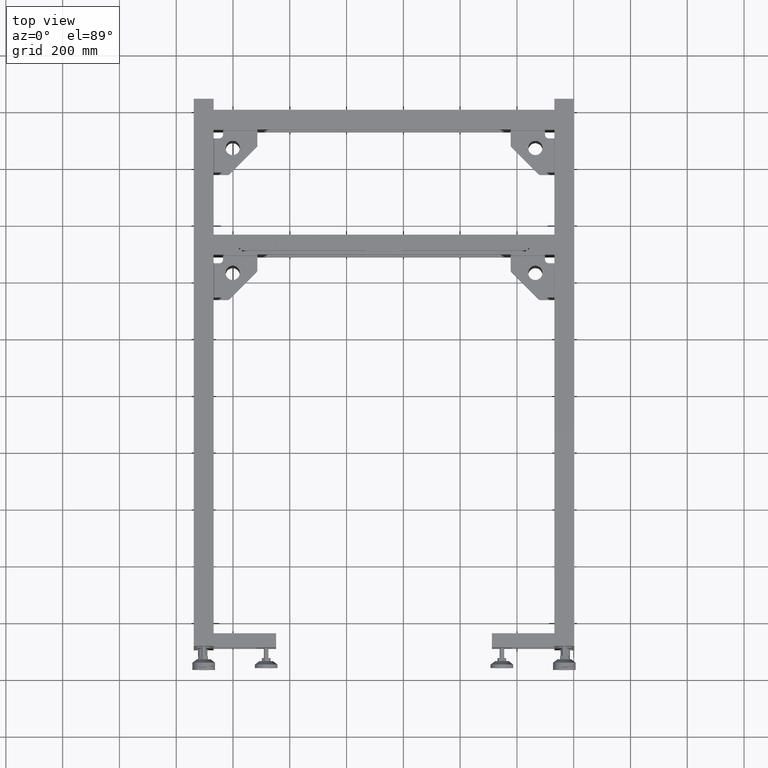
[diagram: clean part render]
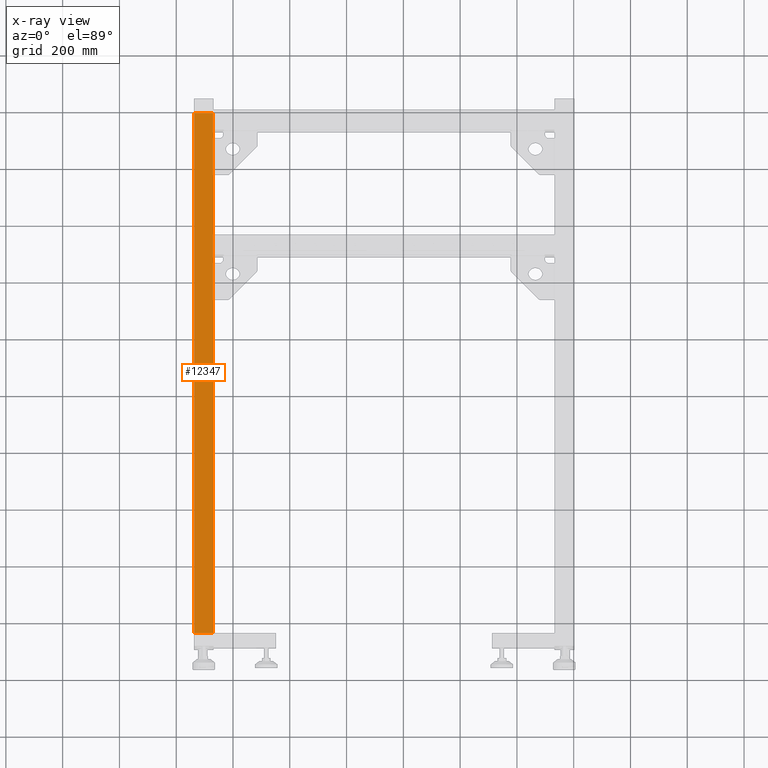
[diagram: x-ray — body ghosted, one internal face saturated and labeled with its STEP entity id]
A machine part, top view, then the same camera in x-ray: the body is ghosted and one INTERNAL B-rep face — a face not visible from any outside direction — is saturated and labeled: STEP entity #12347.
In plain terms, the highlighted planar face has unit normal (-0, 0, 1).
Its self-contained STEP definition (entity closure, byte-faithful):
#1237 = LINE ( 'NONE', #44710, #69145 ) ;
#2318 = DIRECTION ( 'NONE',  ( -0.000000000000000000, 0.000000000000000000, 1.000000000000000000 ) ) ;
#9345 = CARTESIAN_POINT ( 'NONE',  ( -1336.172487437185055, 986.4410804020136538, 201.9999999999999716 ) ) ;
#10933 = VERTEX_POINT ( 'NONE', #80386 ) ;
#12347 = ADVANCED_FACE ( 'NONE', ( #64896 ), #52671, .T. ) ;
#13822 = DIRECTION ( 'NONE',  ( -1.000000000000000078E-15, -1.000000000000000000, -0.000000000000000000 ) ) ;
#17608 = VERTEX_POINT ( 'NONE', #25267 ) ;
#21213 = LINE ( 'NONE', #46021, #49966 ) ;
#22161 = EDGE_CURVE ( 'NONE', #17608, #10933, #21213, .T. ) ;
#23227 = CARTESIAN_POINT ( 'NONE',  ( -1336.172487437185055, 986.4410804020136538, 201.9999999999999716 ) ) ;
#25267 = CARTESIAN_POINT ( 'NONE',  ( -1270.172487437185055, 986.4410804020109254, 201.9999999999999716 ) ) ;
#27706 = ORIENTED_EDGE ( 'NONE', *, *, #22161, .F. ) ;
#28500 = VERTEX_POINT ( 'NONE', #29936 ) ;
#29936 = CARTESIAN_POINT ( 'NONE',  ( -1336.172487437185055, 986.4410804020136538, 201.9999999999999716 ) ) ;
#34382 = VERTEX_POINT ( 'NONE', #69545 ) ;
#34725 = EDGE_LOOP ( 'NONE', ( #60747, #78163, #27706, #78817 ) ) ;
#42750 = EDGE_CURVE ( 'NONE', #34382, #10933, #1237, .T. ) ;
#44710 = CARTESIAN_POINT ( 'NONE',  ( -1336.172487437185055, -844.5589195979888473, 201.9999999999999716 ) ) ;
#45112 = DIRECTION ( 'NONE',  ( 1.000000000000000000, 0.000000000000000000, 0.000000000000000000 ) ) ;
#45426 = DIRECTION ( 'NONE',  ( 1.000000000000000000, 0.000000000000000000, 0.000000000000000000 ) ) ;
#46021 = CARTESIAN_POINT ( 'NONE',  ( -1270.172487437185055, 986.4410804020136538, 201.9999999999999716 ) ) ;
#46293 = VECTOR ( 'NONE', #13822, 1000.000000000000000 ) ;
#48023 = DIRECTION ( 'NONE',  ( -1.000000000000000000, 1.682156097916908074E-15, -0.000000000000000000 ) ) ;
#49966 = VECTOR ( 'NONE', #70807, 1000.000000000000000 ) ;
#52671 = PLANE ( 'NONE',  #73660 ) ;
#54516 = LINE ( 'NONE', #23227, #67075 ) ;
#60747 = ORIENTED_EDGE ( 'NONE', *, *, #65113, .T. ) ;
#64896 = FACE_OUTER_BOUND ( 'NONE', #34725, .T. ) ;
#64954 = EDGE_CURVE ( 'NONE', #17608, #28500, #54516, .T. ) ;
#65113 = EDGE_CURVE ( 'NONE', #28500, #34382, #69506, .T. ) ;
#67075 = VECTOR ( 'NONE', #48023, 1000.000000000000000 ) ;
#69145 = VECTOR ( 'NONE', #45112, 1000.000000000000000 ) ;
#69506 = LINE ( 'NONE', #9345, #46293 ) ;
#69545 = CARTESIAN_POINT ( 'NONE',  ( -1336.172487437185055, -844.5589195979888473, 201.9999999999999716 ) ) ;
#69799 = CARTESIAN_POINT ( 'NONE',  ( -1336.172487437185055, 986.4410804020136538, 201.9999999999999716 ) ) ;
#70807 = DIRECTION ( 'NONE',  ( -1.000000000000000078E-15, -1.000000000000000000, -0.000000000000000000 ) ) ;
#73660 = AXIS2_PLACEMENT_3D ( 'NONE', #69799, #2318, #45426 ) ;
#78163 = ORIENTED_EDGE ( 'NONE', *, *, #42750, .T. ) ;
#78817 = ORIENTED_EDGE ( 'NONE', *, *, #64954, .T. ) ;
#80386 = CARTESIAN_POINT ( 'NONE',  ( -1270.172487437185055, -844.5589195979888473, 201.9999999999999716 ) ) ;